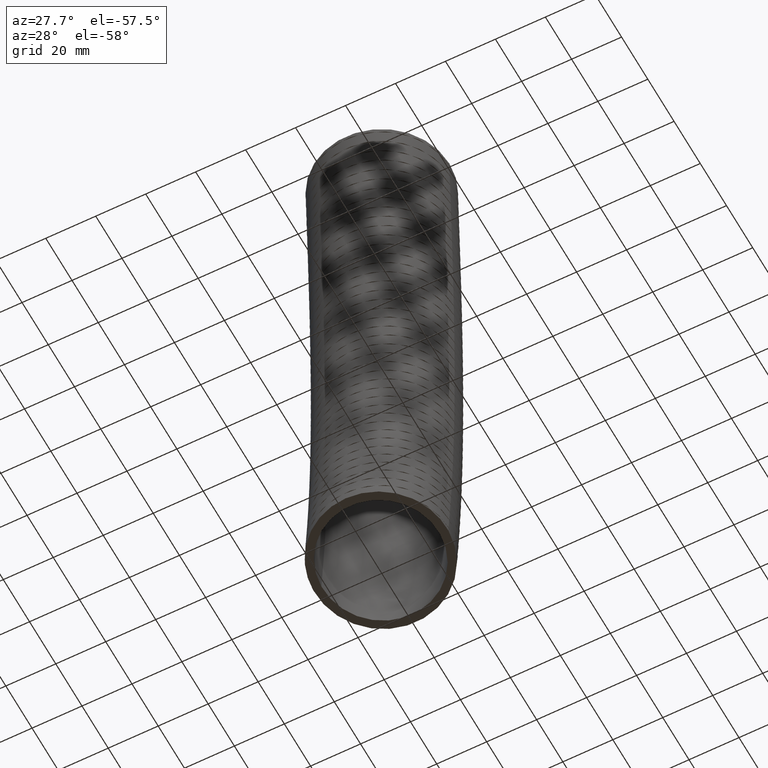
[diagram: clean part render]
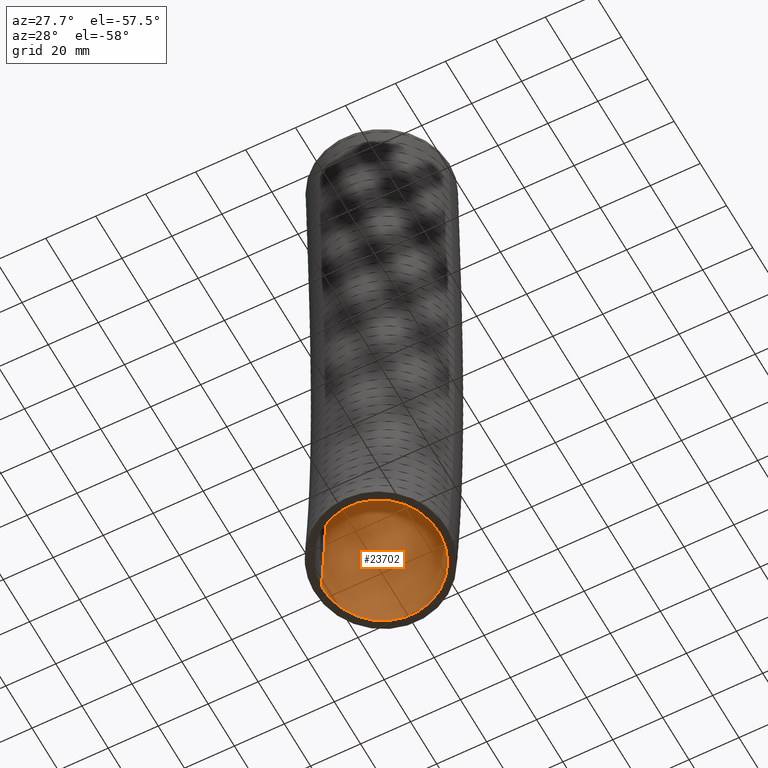
[diagram: same view with one face highlighted and labeled with its STEP entity id]
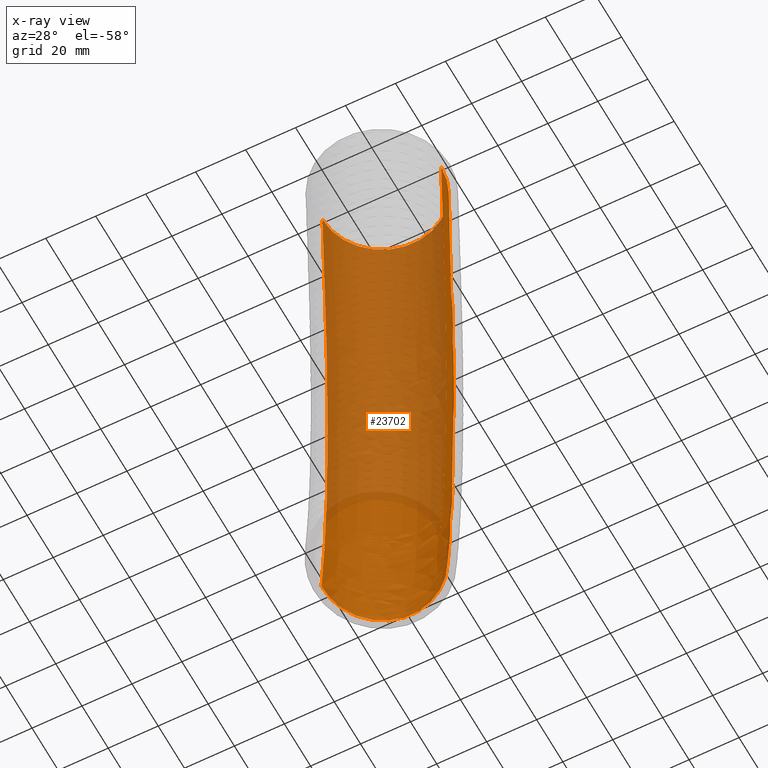
[diagram: x-ray of the same camera — body ghosted, the highlighted face saturated]
A machine part, auxiliary view. The second image highlights one B-rep face of the part: STEP entity #23702.
The next image is the same camera in x-ray: the body ghosted, the highlighted face saturated — about 68% of this face is hidden behind the body in this view.
In plain terms, the highlighted face is a freeform B-spline surface patch.
Its self-contained STEP definition (entity closure, byte-faithful):
#10994 = CARTESIAN_POINT ( 'NONE',  ( 0.9350000000000001600, 0.07923988111738790300, -1.790019474294677300 ) ) ;
#10995 = CARTESIAN_POINT ( 'NONE',  ( 0.9350000000000001600, 0.0000000000000000000, 0.0000000000000000000 ) ) ;
#11000 = B_SPLINE_CURVE_WITH_KNOTS ( 'NONE', 3,
 ( #10995, #10994, #11058, #11057, #11055, #11054 ),
 .UNSPECIFIED., .F., .F.,
 ( 4, 1, 1, 4 ),
 ( 0.0000000000000000000, 0.5600000000000001600, 0.9402239691641354200, 1.000000000000000000 ),
 .UNSPECIFIED. ) ;
#11054 = CARTESIAN_POINT ( 'NONE',  ( 0.9350000000000000500, -0.02999999999999988400, -9.569999999999996700 ) ) ;
#11055 = CARTESIAN_POINT ( 'NONE',  ( 0.9349999999999998300, -0.01282253193203170200, -9.380021792021830500 ) ) ;
#11057 = CARTESIAN_POINT ( 'NONE',  ( 0.9349999999999997200, 0.1136175452062334300, -7.981628316551387500 ) ) ;
#11058 = CARTESIAN_POINT ( 'NONE',  ( 0.9349999999999997200, 0.2122813731536104000, -4.795410929656176400 ) ) ;
#11176 = CARTESIAN_POINT ( 'NONE',  ( 0.9350000000000000500, -0.02999999999999988400, -9.569999999999996700 ) ) ;
#11177 = DIRECTION ( 'NONE',  ( 1.000000000000000000, 0.0000000000000000000, 0.0000000000000000000 ) ) ;
#11178 = DIRECTION ( 'NONE',  ( 0.0000000000000000000, 0.1340072641038699800, 0.9909803495364555300 ) ) ;
#11179 = AXIS2_PLACEMENT_3D ( 'NONE', #11186, #11178, #11177 ) ;
#11180 = CIRCLE ( 'NONE', #11179, 0.9350000000000000500 ) ;
#11186 = CARTESIAN_POINT ( 'NONE',  ( 0.0000000000000000000, -0.02999999999999988400, -9.569999999999996700 ) ) ;
#12797 = CARTESIAN_POINT ( 'NONE',  ( 0.0000000000000000000, 0.0000000000000000000, 0.0000000000000000000 ) ) ;
#12862 = FACE_OUTER_BOUND ( 'NONE', #23698, .T. ) ;
#12863 = CARTESIAN_POINT ( 'NONE',  ( 0.9350000000000001600, 0.0000000000000000000, 0.0000000000000000000 ) ) ;
#12864 = CARTESIAN_POINT ( 'NONE',  ( -0.9350000000000001600, 1.145044757202775300E-016, 0.0000000000000000000 ) ) ;
#12865 = DIRECTION ( 'NONE',  ( 1.000000000000000000, 0.0000000000000000000, 0.0000000000000000000 ) ) ;
#12866 = DIRECTION ( 'NONE',  ( 0.0000000000000000000, 0.0000000000000000000, 1.000000000000000000 ) ) ;
#12867 = AXIS2_PLACEMENT_3D ( 'NONE', #12797, #12866, #12865 ) ;
#12868 = CIRCLE ( 'NONE', #12867, 0.9350000000000001600 ) ;
#12869 = CARTESIAN_POINT ( 'NONE',  ( -0.9350000000000001600, -1.883133253633172400, -9.319406416125758600 ) ) ;
#12870 = CARTESIAN_POINT ( 'NONE',  ( -0.9350000000000001600, -1.866769696390770700, -9.137999626538126900 ) ) ;
#12871 = CARTESIAN_POINT ( 'NONE',  ( -0.9350000000000000500, -1.746320662121057400, -7.802698732476939000 ) ) ;
#12872 = CARTESIAN_POINT ( 'NONE',  ( -0.9350000000000002800, -1.660353927022747600, -4.752992316201762400 ) ) ;
#12873 = CARTESIAN_POINT ( 'NONE',  ( -0.9350000000000001600, -1.791743817403029600, -1.774185556144637100 ) ) ;
#12874 = CARTESIAN_POINT ( 'NONE',  ( -0.9350000000000001600, -1.870000000000000300, 0.0000000000000000000 ) ) ;
#12875 = CARTESIAN_POINT ( 'NONE',  ( 0.9350000000000000500, -1.883133253633172400, -9.319406416125758600 ) ) ;
#12876 = CARTESIAN_POINT ( 'NONE',  ( 0.9350000000000000500, -1.866769696390770700, -9.137999626538126900 ) ) ;
#12877 = CARTESIAN_POINT ( 'NONE',  ( 0.9349999999999998300, -1.746320662121057400, -7.802698732476939000 ) ) ;
#12878 = CARTESIAN_POINT ( 'NONE',  ( 0.9349999999999999400, -1.660353927022747600, -4.752992316201762400 ) ) ;
#12879 = CARTESIAN_POINT ( 'NONE',  ( 0.9350000000000001600, -1.791743817403029600, -1.774185556144637100 ) ) ;
#12880 = CARTESIAN_POINT ( 'NONE',  ( 0.9350000000000001600, -1.870000000000000300, 0.0000000000000000000 ) ) ;
#12881 = CARTESIAN_POINT ( 'NONE',  ( 0.9349999999999999400, -0.02999999999999993000, -9.569999999999996700 ) ) ;
#12882 = CARTESIAN_POINT ( 'NONE',  ( 0.9349999999999999400, -0.01282253193203170200, -9.380021792021830500 ) ) ;
#12883 = CARTESIAN_POINT ( 'NONE',  ( 0.9349999999999998300, 0.1136175452062334300, -7.981628316551387500 ) ) ;
#12884 = CARTESIAN_POINT ( 'NONE',  ( 0.9349999999999998300, 0.2122813731536103700, -4.795410929656176400 ) ) ;
#12885 = CARTESIAN_POINT ( 'NONE',  ( 0.9350000000000001600, 0.07923988111738790300, -1.790019474294677300 ) ) ;
#12886 = CARTESIAN_POINT ( 'NONE',  ( 0.9350000000000001600, 0.0000000000000000000, 0.0000000000000000000 ) ) ;
#12891 =( BOUNDED_SURFACE ( )  B_SPLINE_SURFACE ( 3, 3, ( 
 ( #12886, #12885, #12884, #12883, #12882, #12881 ),
 ( #12880, #12879, #12878, #12877, #12876, #12875 ),
 ( #12874, #12873, #12872, #12871, #12870, #12869 ),
 ( #12924, #12923, #12922, #12921, #12920, #12919 ),
 ( #12918, #12917, #12916, #12915, #12914, #12913 ),
 ( #12912, #12911, #12910, #12909, #12908, #12907 ),
 ( #12906, #12905, #12904, #12903, #12902, #12901 ) ),
 .UNSPECIFIED., .F., .F., .F. ) 
 B_SPLINE_SURFACE_WITH_KNOTS ( ( 4, 3, 4 ),
 ( 4, 1, 1, 4 ),
 ( 0.0000000000000000000, 0.5000000000000000000, 1.000000000000000000 ),
 ( 0.0000000000000000000, 0.5600000000000001600, 0.9402239691641354200, 1.000000000000000000 ),
 .UNSPECIFIED. ) 
 GEOMETRIC_REPRESENTATION_ITEM ( )  RATIONAL_B_SPLINE_SURFACE ( (
 ( 1.000000000000000000, 1.000000000000000000, 1.000000000000000200, 1.000000000000000200, 1.000000000000000200, 1.000000000000000200),
 ( 0.3333333333333333100, 0.3333333333333333100, 0.3333333333333332600, 0.3333333333333334300, 0.3333333333333333700, 0.3333333333333333700),
 ( 0.3333333333333333100, 0.3333333333333333100, 0.3333333333333332600, 0.3333333333333334300, 0.3333333333333333700, 0.3333333333333333700),
 ( 1.000000000000000000, 1.000000000000000000, 1.000000000000000200, 1.000000000000000200, 1.000000000000000200, 1.000000000000000200),
 ( 0.3333333333333333100, 0.3333333333333333100, 0.3333333333333332600, 0.3333333333333334300, 0.3333333333333333700, 0.3333333333333333700),
 ( 0.3333333333333333100, 0.3333333333333333100, 0.3333333333333332600, 0.3333333333333334300, 0.3333333333333333700, 0.3333333333333333700),
 ( 1.000000000000000000, 1.000000000000000000, 1.000000000000000200, 1.000000000000000200, 1.000000000000000200, 1.000000000000000200) ) ) 
 REPRESENTATION_ITEM ( '' )  SURFACE ( )  );
#12901 = CARTESIAN_POINT ( 'NONE',  ( 0.9349999999999999400, -0.02999999999999993000, -9.569999999999996700 ) ) ;
#12902 = CARTESIAN_POINT ( 'NONE',  ( 0.9349999999999999400, -0.01282253193203170200, -9.380021792021830500 ) ) ;
#12903 = CARTESIAN_POINT ( 'NONE',  ( 0.9349999999999998300, 0.1136175452062334300, -7.981628316551387500 ) ) ;
#12904 = CARTESIAN_POINT ( 'NONE',  ( 0.9349999999999998300, 0.2122813731536103700, -4.795410929656176400 ) ) ;
#12905 = CARTESIAN_POINT ( 'NONE',  ( 0.9350000000000001600, 0.07923988111738790300, -1.790019474294677300 ) ) ;
#12906 = CARTESIAN_POINT ( 'NONE',  ( 0.9350000000000001600, 0.0000000000000000000, 0.0000000000000000000 ) ) ;
#12907 = CARTESIAN_POINT ( 'NONE',  ( 0.9350000000000000500, 1.823133253633172600, -9.820593583874233100 ) ) ;
#12908 = CARTESIAN_POINT ( 'NONE',  ( 0.9350000000000000500, 1.841124632526707900, -9.622043957505537600 ) ) ;
#12909 = CARTESIAN_POINT ( 'NONE',  ( 0.9349999999999998300, 1.973555752533524100, -8.160557900625834200 ) ) ;
#12910 = CARTESIAN_POINT ( 'NONE',  ( 0.9349999999999999400, 2.084916673329968900, -4.837829543110593100 ) ) ;
#12911 = CARTESIAN_POINT ( 'NONE',  ( 0.9350000000000001600, 1.950223579637805300, -1.805853392444716400 ) ) ;
#12912 = CARTESIAN_POINT ( 'NONE',  ( 0.9350000000000001600, 1.870000000000000300, 0.0000000000000000000 ) ) ;
#12913 = CARTESIAN_POINT ( 'NONE',  ( -0.9349999999999997200, 1.823133253633172600, -9.820593583874233100 ) ) ;
#12914 = CARTESIAN_POINT ( 'NONE',  ( -0.9349999999999997200, 1.841124632526707900, -9.622043957505537600 ) ) ;
#12915 = CARTESIAN_POINT ( 'NONE',  ( -0.9349999999999995000, 1.973555752533524100, -8.160557900625834200 ) ) ;
#12916 = CARTESIAN_POINT ( 'NONE',  ( -0.9349999999999995000, 2.084916673329968900, -4.837829543110593100 ) ) ;
#12917 = CARTESIAN_POINT ( 'NONE',  ( -0.9349999999999998300, 1.950223579637805300, -1.805853392444716400 ) ) ;
#12918 = CARTESIAN_POINT ( 'NONE',  ( -0.9349999999999998300, 1.870000000000000300, 0.0000000000000000000 ) ) ;
#12919 = CARTESIAN_POINT ( 'NONE',  ( -0.9349999999999999400, -0.02999999999999981500, -9.569999999999996700 ) ) ;
#12920 = CARTESIAN_POINT ( 'NONE',  ( -0.9349999999999999400, -0.01282253193203158400, -9.380021792021830500 ) ) ;
#12921 = CARTESIAN_POINT ( 'NONE',  ( -0.9349999999999998300, 0.1136175452062335400, -7.981628316551387500 ) ) ;
#12922 = CARTESIAN_POINT ( 'NONE',  ( -0.9349999999999998300, 0.2122813731536105100, -4.795410929656176400 ) ) ;
#12923 = CARTESIAN_POINT ( 'NONE',  ( -0.9350000000000001600, 0.07923988111738800000, -1.790019474294677300 ) ) ;
#12924 = CARTESIAN_POINT ( 'NONE',  ( -0.9350000000000001600, 1.145044757202775300E-016, 0.0000000000000000000 ) ) ;
#19733 = CARTESIAN_POINT ( 'NONE',  ( -0.9350000000000001600, -0.02999999999999995700, -9.569999999999996700 ) ) ;
#19734 = CARTESIAN_POINT ( 'NONE',  ( -0.9349999999999998300, -0.01282253193203158500, -9.380021792021830500 ) ) ;
#19735 = CARTESIAN_POINT ( 'NONE',  ( -0.9349999999999997200, 0.1136175452062335600, -7.981628316551387500 ) ) ;
#19736 = CARTESIAN_POINT ( 'NONE',  ( -0.9349999999999997200, 0.2122813731536105400, -4.795410929656176400 ) ) ;
#19737 = CARTESIAN_POINT ( 'NONE',  ( -0.9350000000000001600, 0.07923988111738800000, -1.790019474294677300 ) ) ;
#19738 = CARTESIAN_POINT ( 'NONE',  ( -0.9350000000000001600, 1.145044757202775300E-016, 0.0000000000000000000 ) ) ;
#19741 = B_SPLINE_CURVE_WITH_KNOTS ( 'NONE', 3,
 ( #19738, #19737, #19736, #19735, #19734, #19733 ),
 .UNSPECIFIED., .F., .F.,
 ( 4, 1, 1, 4 ),
 ( 0.0000000000000000000, 0.5600000000000001600, 0.9402239691641354200, 1.000000000000000000 ),
 .UNSPECIFIED. ) ;
#19743 = CARTESIAN_POINT ( 'NONE',  ( -0.9350000000000001600, -0.02999999999999995700, -9.569999999999996700 ) ) ;
#23281 = EDGE_CURVE ( 'NONE', #23701, #23323, #11000, .T. ) ;
#23300 = ORIENTED_EDGE ( 'NONE', *, *, #23320, .F. ) ;
#23320 = EDGE_CURVE ( 'NONE', #23323, #24488, #11180, .T. ) ;
#23323 = VERTEX_POINT ( 'NONE', #11176 ) ;
#23325 = ORIENTED_EDGE ( 'NONE', *, *, #23281, .F. ) ;
#23695 = ORIENTED_EDGE ( 'NONE', *, *, #23699, .T. ) ;
#23698 = EDGE_LOOP ( 'NONE', ( #23695, #23710, #23300, #23325 ) ) ;
#23699 = EDGE_CURVE ( 'NONE', #23701, #23700, #12868, .T. ) ;
#23700 = VERTEX_POINT ( 'NONE', #12864 ) ;
#23701 = VERTEX_POINT ( 'NONE', #12863 ) ;
#23702 = ADVANCED_FACE ( 'NONE', ( #12862 ), #12891, .F. ) ;
#23710 = ORIENTED_EDGE ( 'NONE', *, *, #24489, .T. ) ;
#24488 = VERTEX_POINT ( 'NONE', #19743 ) ;
#24489 = EDGE_CURVE ( 'NONE', #23700, #24488, #19741, .T. ) ;